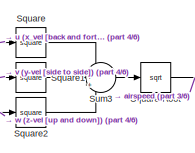
[diagram: root canvas - part 1/6, top right region]
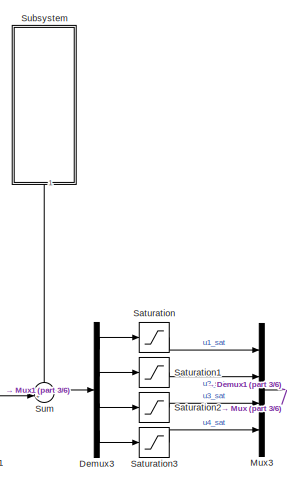
[diagram: root canvas - part 2/6, top left region]
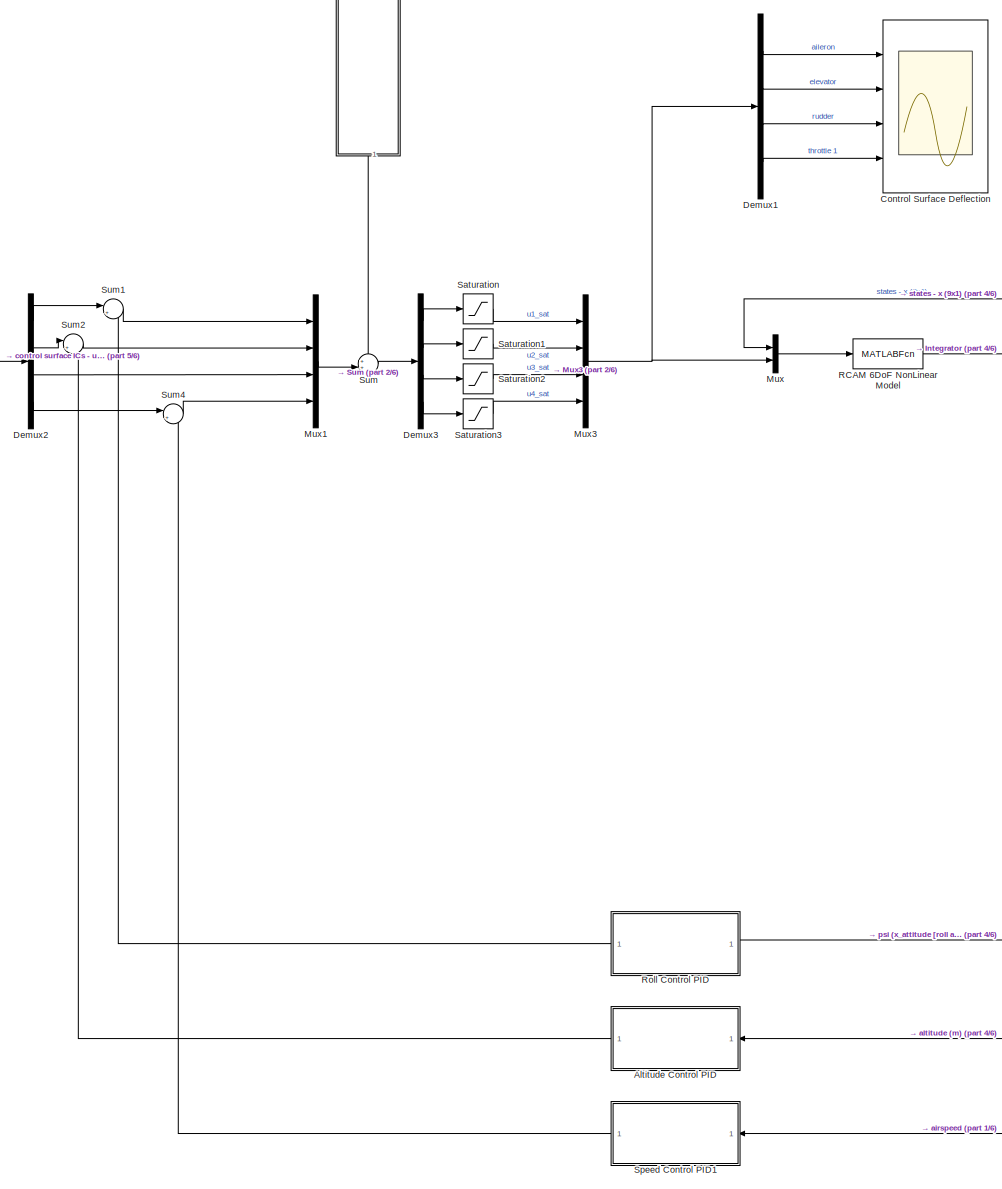
[diagram: root canvas - part 3/6, left side, full height]
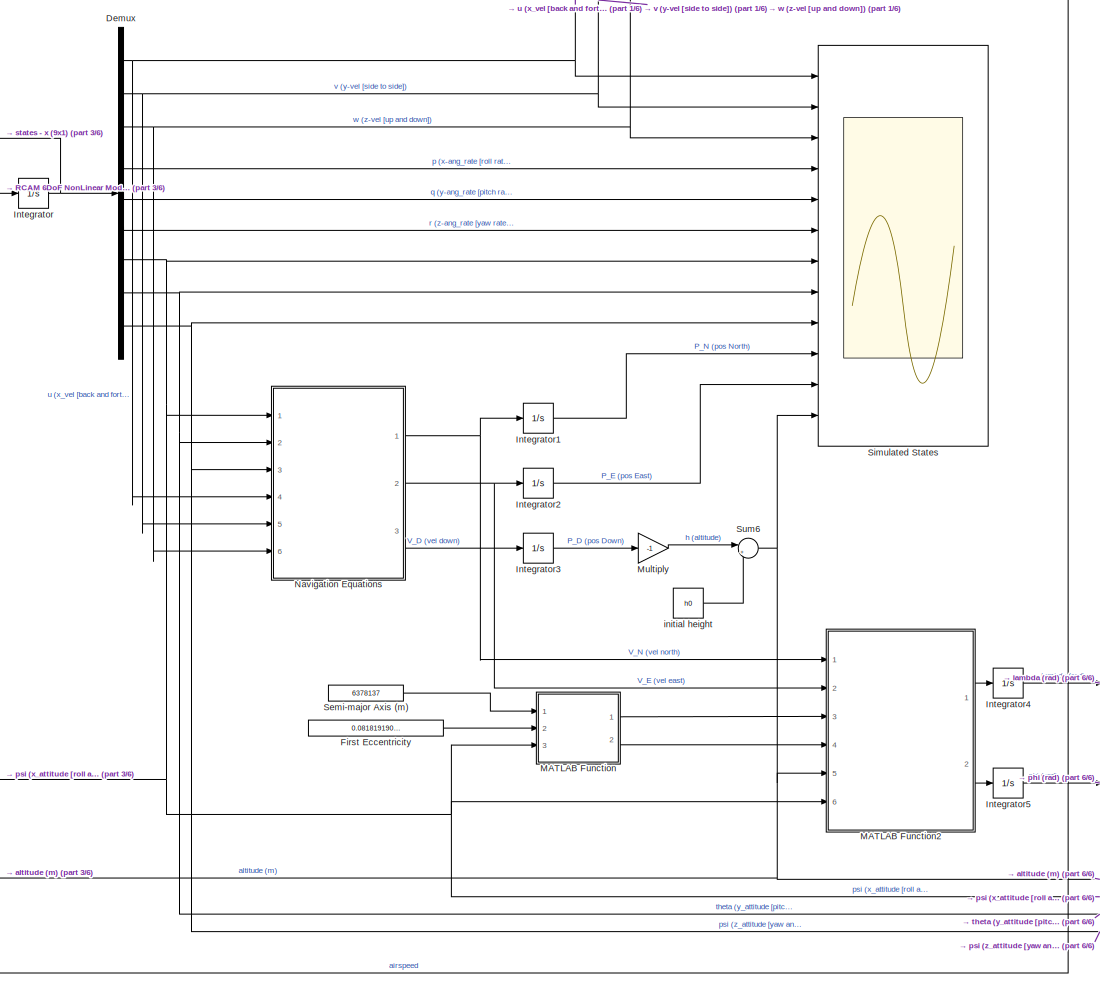
[diagram: root canvas - part 4/6, center side, full height]
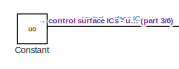
[diagram: root canvas - part 5/6, middle left region]
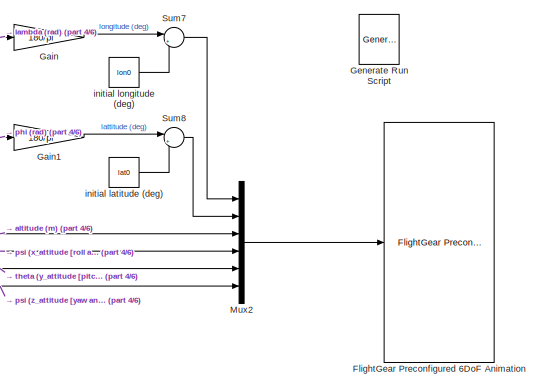
[diagram: root canvas - part 6/6, bottom right region]
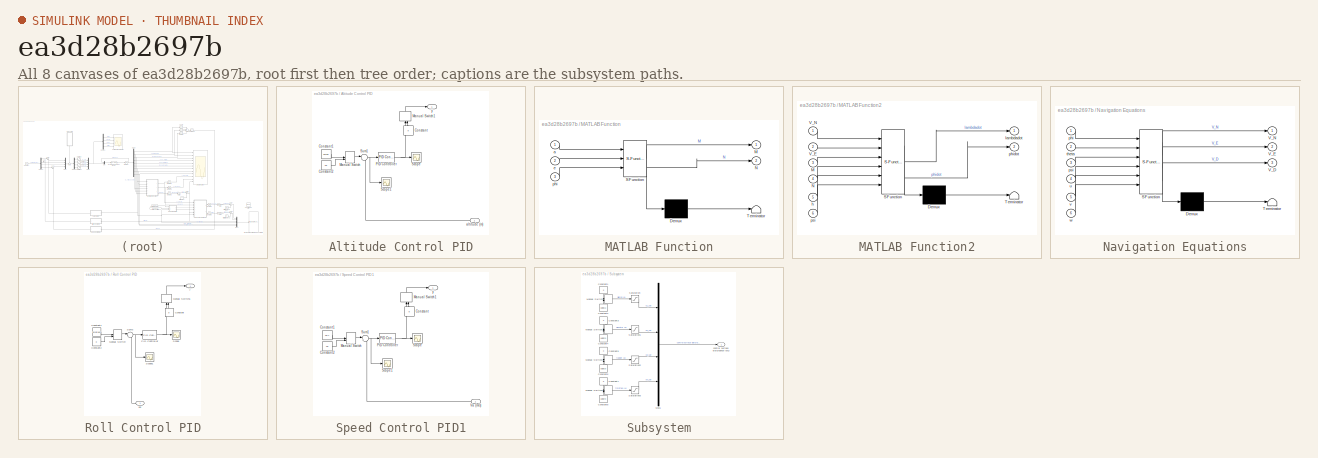
[diagram: thumbnail index - all 8 canvases of the model, root first then tree order]
MODEL slx_ea3d28b2697b
KIND model
CONFIG AbsTol = auto
CONFIG EnableMultiTasking = off
CONFIG FixedStep = 0.0001
CONFIG MaxStep = auto
CONFIG MinStep = auto
CONFIG RelTol = 1e-3
CONFIG SampleTimeConstraint = Unconstrained
CONFIG SolverName = VariableStepAuto
CONFIG StartTime = 0.0
CONFIG StopTime = 120
BLOCK [SubSystem] Altitude Control PID
  NameLocation = top
  Ports = [1, 1]
  RequestExecContextInheritance = off
BLOCK [Constant] Altitude Control PID/Constant
  NameLocation = right
  Value = 0
BLOCK [Constant] Altitude Control PID/Constant1
  Value = h0+30
BLOCK [Constant] Altitude Control PID/Constant2
  Value = h0
BLOCK [ManualSwitch] Altitude Control PID/Manual Switch
  CurrentSetting = 0
BLOCK [ManualSwitch] Altitude Control PID/Manual Switch1
  NameLocation = right
BLOCK [Reference] Altitude Control PID/PID Controller  REF=slpidlib/PID Controller
  Ports = [1, 1]
  SourceBlock = slpidlib/PID Controller
  SourceProductBaseCode = SL
  SourceType = PID 1dof
BLOCK [Scope] Altitude Control PID/Scope
  Floating = off
  NumInputPorts = 1
  Ports = [1]
  ScopeSpecificationString = Simulink.scopes.TimeScopeBlockCfg('CurrentConfiguration', extmgr.ConfigurationSet(extmgr.Configuration('Core','General UI',true),extmgr.Configuration('Core','Source UI',true),extmgr.Configuration('Sources','WiredSimulink',true,'DataLoggingVariableName','ScopeData1'),extmgr.Configuration('Visuals','Time Domain',true,'SerializedDisplays',{struct('MinYLimReal','-0.51269','MaxYLimReal','0.25089','YLab...<+1373ch>
BLOCK [Scope] Altitude Control PID/Scope1
  Floating = off
  NumInputPorts = 1
  Ports = [1]
  ScopeSpecificationString = Simulink.scopes.TimeScopeBlockCfg('CurrentConfiguration', extmgr.ConfigurationSet(extmgr.Configuration('Core','General UI',true),extmgr.Configuration('Core','Source UI',true),extmgr.Configuration('Sources','WiredSimulink',true,'DataLoggingVariableName','ScopeData2'),extmgr.Configuration('Visuals','Time Domain',true,'SerializedDisplays',{struct('MinYLimReal','-334.47065','MaxYLimReal','141.49547','...<+1377ch>
BLOCK [Sum] Altitude Control PID/Sum1
  Inputs = |-+
  Ports = [2, 1]
BLOCK [Inport] Altitude Control PID/altitude (m)
BLOCK [Outport] Altitude Control PID/y
BLOCK [Constant] Constant
  Value = uo
BLOCK [Scope] Control Surface Deflection
  Floating = off
  NumInputPorts = 4
  Ports = [4]
  ScopeSpecificationString = Simulink.scopes.TimeScopeBlockCfg('CurrentConfiguration', extmgr.ConfigurationSet(extmgr.Configuration('Core','General UI',true),extmgr.Configuration('Core','Source UI',true),extmgr.Configuration('Sources','WiredSimulink',true),extmgr.Configuration('Visuals','Time Domain',true,'SerializedDisplays',{struct('MinYLimReal','-1.00000','MaxYLimReal','1.00000','YLabelReal','','MinYLimMag','0.00000','MaxY...<+4797ch>
BLOCK [Demux] Demux
  Outputs = 9
  Ports = [1, 9]
BLOCK [Demux] Demux1
  Ports = [1, 4]
BLOCK [Demux] Demux2
  Ports = [1, 4]
BLOCK [Demux] Demux3
  Ports = [1, 4]
BLOCK [Constant] First Eccentricity
  Value = 0.081819190842622
BLOCK [Reference] FlightGear Preconfigured 6DoF Animation  REF=aerolibfltsims/FlightGear
Preconfigured
6DoF Animation
  Commented = on
  Ports = [1]
  SourceBlock = aerolibfltsims/FlightGear\nPreconfigured\n6DoF Animation
  SourceProductBaseCode = AE
  SourceType = FlightGearQuick6DoFAnimation
BLOCK [Gain] Gain
  Gain = 180/pi
BLOCK [Gain] Gain1
  Gain = 180/pi
BLOCK [Reference] Generate Run Script  REF=aerolibfltsims/Generate
Run Script
  Commented = on
  Ports = []
  SourceBlock = aerolibfltsims/Generate\nRun Script
  SourceProductBaseCode = AE
  SourceType = Generate FlightGear Run Script
BLOCK [Integrator] Integrator
  InitialCondition = x0
  Ports = [1, 1]
BLOCK [Integrator] Integrator1
  Ports = [1, 1]
BLOCK [Integrator] Integrator2
  Ports = [1, 1]
BLOCK [Integrator] Integrator3
  Ports = [1, 1]
BLOCK [Integrator] Integrator4
  Ports = [1, 1]
BLOCK [Integrator] Integrator5
  LowerSaturationLimit = -pi
  Ports = [1, 1]
  UpperSaturationLimit = pi
BLOCK [SubSystem] MATLAB Function
  ErrorFcn = Stateflow.Translate.translate
  PermitHierarchicalResolution = ExplicitOnly
  Ports = [3, 2]
  RequestExecContextInheritance = off
  SFBlockType = MATLAB Function
  TreatAsAtomicUnit = on
BLOCK [Demux] MATLAB Function/ Demux 
  Outputs = 1
  Ports = [1, 1]
BLOCK [S-Function] MATLAB Function/ SFunction 
  EnableBusSupport = on
  FunctionName = sf_sfun
  PortCounts = [3 3]
  Ports = [3, 3]
  SFcnIsStateOwnerBlock = off
  SFunctionDeploymentMode = off
  Tag = Stateflow S-Function 1
BLOCK [Terminator] MATLAB Function/ Terminator 
BLOCK [Outport] MATLAB Function/M
BLOCK [Outport] MATLAB Function/N
  Port = 2
BLOCK [Inport] MATLAB Function/a
BLOCK [Inport] MATLAB Function/e
  Port = 2
BLOCK [Inport] MATLAB Function/phi
  Port = 3
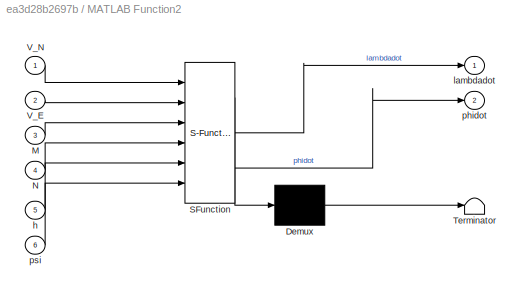
BLOCK [SubSystem] MATLAB Function2
  ErrorFcn = Stateflow.Translate.translate
  PermitHierarchicalResolution = ExplicitOnly
  Ports = [6, 2]
  RequestExecContextInheritance = off
  SFBlockType = MATLAB Function
  TreatAsAtomicUnit = on
BLOCK [Demux] MATLAB Function2/ Demux 
  Outputs = 1
  Ports = [1, 1]
BLOCK [S-Function] MATLAB Function2/ SFunction 
  EnableBusSupport = on
  FunctionName = sf_sfun
  PortCounts = [6 3]
  Ports = [6, 3]
  SFcnIsStateOwnerBlock = off
  SFunctionDeploymentMode = off
  Tag = Stateflow S-Function 4
BLOCK [Terminator] MATLAB Function2/ Terminator 
BLOCK [Inport] MATLAB Function2/M
  Port = 3
BLOCK [Inport] MATLAB Function2/N
  Port = 4
BLOCK [Inport] MATLAB Function2/V_E
  Port = 2
BLOCK [Inport] MATLAB Function2/V_N
BLOCK [Inport] MATLAB Function2/h
  Port = 5
BLOCK [Outport] MATLAB Function2/lambdadot
BLOCK [Outport] MATLAB Function2/phidot
  Port = 2
BLOCK [Inport] MATLAB Function2/psi
  Port = 6
BLOCK [Gain] Multiply
  Gain = -1
BLOCK [Mux] Mux
  DisplayOption = bar
  Inputs = 2
  Ports = [2, 1]
BLOCK [Mux] Mux1
  DisplayOption = bar
  Ports = [4, 1]
BLOCK [Mux] Mux2
  DisplayOption = bar
  Inputs = 6
  Ports = [6, 1]
BLOCK [Mux] Mux3
  DisplayOption = bar
  Ports = [4, 1]
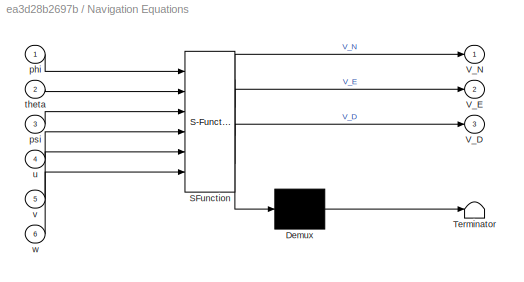
BLOCK [SubSystem] Navigation Equations
  ErrorFcn = Stateflow.Translate.translate
  PermitHierarchicalResolution = ExplicitOnly
  Ports = [6, 3]
  RequestExecContextInheritance = off
  SFBlockType = MATLAB Function
  TreatAsAtomicUnit = on
BLOCK [Demux] Navigation Equations/ Demux 
  Outputs = 1
  Ports = [1, 1]
BLOCK [S-Function] Navigation Equations/ SFunction 
  EnableBusSupport = on
  FunctionName = sf_sfun
  PortCounts = [6 4]
  Ports = [6, 4]
  SFcnIsStateOwnerBlock = off
  SFunctionDeploymentMode = off
  Tag = Stateflow S-Function 2
BLOCK [Terminator] Navigation Equations/ Terminator 
BLOCK [Outport] Navigation Equations/V_D
  Port = 3
BLOCK [Outport] Navigation Equations/V_E
  Port = 2
BLOCK [Outport] Navigation Equations/V_N
BLOCK [Inport] Navigation Equations/phi
BLOCK [Inport] Navigation Equations/psi
  Port = 3
BLOCK [Inport] Navigation Equations/theta
  Port = 2
BLOCK [Inport] Navigation Equations/u
  Port = 4
BLOCK [Inport] Navigation Equations/v
  Port = 5
BLOCK [Inport] Navigation Equations/w
  Port = 6
BLOCK [MATLABFcn] RCAM 6DoF NonLinear Model
  MATLABFcn = RCAM_model(u(1:9), u(10:13))
  Ports = [1, 1]
BLOCK [SubSystem] Roll Control PID
  NameLocation = top
  Ports = [1, 1]
  RequestExecContextInheritance = off
BLOCK [Constant] Roll Control PID/Constant
  NameLocation = right
  Value = 0
BLOCK [Constant] Roll Control PID/Constant1
  Value = 30*pi/180
BLOCK [Constant] Roll Control PID/Constant2
  Value = 0
BLOCK [ManualSwitch] Roll Control PID/Manual Switch
  CurrentSetting = 0
BLOCK [ManualSwitch] Roll Control PID/Manual Switch1
  NameLocation = right
BLOCK [Reference] Roll Control PID/PID Controller  REF=slpidlib/PID Controller
  Ports = [1, 1]
  SourceBlock = slpidlib/PID Controller
  SourceProductBaseCode = SL
  SourceType = PID 1dof
BLOCK [Scope] Roll Control PID/Scope
  Floating = off
  NumInputPorts = 1
  Ports = [1]
  ScopeSpecificationString = Simulink.scopes.TimeScopeBlockCfg('CurrentConfiguration', extmgr.ConfigurationSet(extmgr.Configuration('Core','General UI',true),extmgr.Configuration('Core','Source UI',true),extmgr.Configuration('Sources','WiredSimulink',true,'DataLoggingVariableName','ScopeData1'),extmgr.Configuration('Visuals','Time Domain',true,'SerializedDisplays',{struct('MinYLimReal','-0.51269','MaxYLimReal','0.25089','YLab...<+1373ch>
BLOCK [Scope] Roll Control PID/Scope1
  Floating = off
  NumInputPorts = 1
  Ports = [1]
  ScopeSpecificationString = Simulink.scopes.TimeScopeBlockCfg('CurrentConfiguration', extmgr.ConfigurationSet(extmgr.Configuration('Core','General UI',true),extmgr.Configuration('Core','Source UI',true),extmgr.Configuration('Sources','WiredSimulink',true,'DataLoggingVariableName','ScopeData2'),extmgr.Configuration('Visuals','Time Domain',true,'SerializedDisplays',{struct('MinYLimReal','-1.00000','MaxYLimReal','1.00000','YLab...<+1363ch>
BLOCK [Sum] Roll Control PID/Sum3
  Inputs = |-+
  Ports = [2, 1]
BLOCK [Inport] Roll Control PID/psi
BLOCK [Outport] Roll Control PID/y
BLOCK [Saturate] Saturation
  LowerLimit = u1min
  UpperLimit = u1max
BLOCK [Saturate] Saturation1
  LowerLimit = u2min
  UpperLimit = u2max
BLOCK [Saturate] Saturation2
  LowerLimit = u3min
  UpperLimit = u3max
BLOCK [Saturate] Saturation3
  LowerLimit = u4min
  UpperLimit = u4max
BLOCK [Constant] Semi-major Axis (m)
  Value = 6378137
BLOCK [Scope] Simulated States
  Floating = off
  NumInputPorts = 12
  Ports = [12]
  ScopeSpecificationString = Simulink.scopes.TimeScopeBlockCfg('CurrentConfiguration', extmgr.ConfigurationSet(extmgr.Configuration('Core','General UI',true),extmgr.Configuration('Core','Source UI',true),extmgr.Configuration('Sources','WiredSimulink',true,'DataLoggingVariableName','ScopeData1'),extmgr.Configuration('Visuals','Time Domain',true,'SerializedDisplays',{struct('MinYLimReal','84.99966','MaxYLimReal','85.00057','YLa...<+9310ch>
BLOCK [SubSystem] Speed Control PID1
  NameLocation = top
  Ports = [1, 1]
  RequestExecContextInheritance = off
BLOCK [Constant] Speed Control PID1/Constant
  NameLocation = right
  Value = 0
BLOCK [Constant] Speed Control PID1/Constant1
  Value = va-7
BLOCK [Constant] Speed Control PID1/Constant2
  Value = va
BLOCK [ManualSwitch] Speed Control PID1/Manual Switch
  CurrentSetting = 0
BLOCK [ManualSwitch] Speed Control PID1/Manual Switch1
  CurrentSetting = 0
  NameLocation = right
BLOCK [Reference] Speed Control PID1/PID Controller  REF=slpidlib/PID Controller
  Ports = [1, 1]
  SourceBlock = slpidlib/PID Controller
  SourceProductBaseCode = SL
  SourceType = PID 1dof
BLOCK [Scope] Speed Control PID1/Scope
  Floating = off
  NumInputPorts = 1
  Ports = [1]
  ScopeSpecificationString = Simulink.scopes.TimeScopeBlockCfg('CurrentConfiguration', extmgr.ConfigurationSet(extmgr.Configuration('Core','General UI',true),extmgr.Configuration('Core','Source UI',true),extmgr.Configuration('Sources','WiredSimulink',true,'DataLoggingVariableName','ScopeData1'),extmgr.Configuration('Visuals','Time Domain',true,'SerializedDisplays',{struct('MinYLimReal','-0.07994','MaxYLimReal','0.00888','YLab...<+1403ch>
BLOCK [Scope] Speed Control PID1/Scope1
  Floating = off
  NumInputPorts = 1
  Ports = [1]
  ScopeSpecificationString = Simulink.scopes.TimeScopeBlockCfg('CurrentConfiguration', extmgr.ConfigurationSet(extmgr.Configuration('Core','General UI',true),extmgr.Configuration('Core','Source UI',true),extmgr.Configuration('Sources','WiredSimulink',true,'DataLoggingVariableName','ScopeData2'),extmgr.Configuration('Visuals','Time Domain',true,'SerializedDisplays',{struct('MinYLimReal','-3.63689','MaxYLimReal','2.0976','YLabe...<+1361ch>
BLOCK [Sum] Speed Control PID1/Sum1
  Inputs = |+-
  Ports = [2, 1]
BLOCK [Inport] Speed Control PID1/Va (m//s)
BLOCK [Outport] Speed Control PID1/y
BLOCK [Math] Square
  Operator = square
  Ports = [1, 1]
BLOCK [Sqrt] Square Root
BLOCK [Math] Square1
  Operator = square
  Ports = [1, 1]
BLOCK [Math] Square2
  Operator = square
  Ports = [1, 1]
BLOCK [SubSystem] Subsystem
  NameLocation = left
  Ports = [0, 1]
  RequestExecContextInheritance = off
BLOCK [Constant] Subsystem/Constant1
  NameLocation = left
  Value = 0
BLOCK [Constant] Subsystem/Constant2
  NameLocation = right
  Value = udist(1)
BLOCK [Constant] Subsystem/Constant3
  NameLocation = left
  Value = 0
BLOCK [Constant] Subsystem/Constant4
  NameLocation = right
  Value = udist(2)
BLOCK [Constant] Subsystem/Constant5
  NameLocation = left
  Value = 0
BLOCK [Constant] Subsystem/Constant6
  NameLocation = right
  Value = udist(3)
BLOCK [Constant] Subsystem/Constant7
  NameLocation = left
  Value = 0
BLOCK [Constant] Subsystem/Constant8
  NameLocation = right
  Value = udist(4)
BLOCK [ManualSwitch] Subsystem/Manual Switch
BLOCK [ManualSwitch] Subsystem/Manual Switch1
BLOCK [ManualSwitch] Subsystem/Manual Switch2
BLOCK [ManualSwitch] Subsystem/Manual Switch3
BLOCK [Mux] Subsystem/Mux1
  DisplayOption = bar
  Ports = [4, 1]
BLOCK [Saturate] Subsystem/Saturation
  LowerLimit = u1min
  UpperLimit = u1max
BLOCK [Saturate] Subsystem/Saturation1
  LowerLimit = u2min
  UpperLimit = u2max
BLOCK [Saturate] Subsystem/Saturation2
  LowerLimit = u3min
  UpperLimit = u3max
BLOCK [Saturate] Subsystem/Saturation3
  LowerLimit = u4min
  UpperLimit = u4max
BLOCK [Outport] Subsystem/control surface disturbance (5x1)
BLOCK [Sum] Sum
  Inputs = ++|
  Ports = [2, 1]
BLOCK [Sum] Sum1
  Inputs = |++
  Ports = [2, 1]
BLOCK [Sum] Sum2
  Inputs = |++
  Ports = [2, 1]
BLOCK [Sum] Sum3
  Inputs = +++
  Ports = [3, 1]
BLOCK [Sum] Sum4
  Inputs = |++
  Ports = [2, 1]
BLOCK [Sum] Sum6
  Inputs = |++
  Ports = [2, 1]
BLOCK [Sum] Sum7
  Inputs = |++
  Ports = [2, 1]
BLOCK [Sum] Sum8
  Inputs = |++
  Ports = [2, 1]
BLOCK [Constant] initial height
  Value = h0
BLOCK [Constant] initial latitude (deg)
  Value = lat0
BLOCK [Constant] initial longitude (deg)
  Value = lon0
LINE Altitude Control PID/Constant1:1 -> Altitude Control PID/Manual Switch:1
LINE Altitude Control PID/Constant2:1 -> Altitude Control PID/Manual Switch:2
LINE Altitude Control PID/Constant:1 -> Altitude Control PID/Manual Switch1:2
LINE Altitude Control PID/Manual Switch1:1 -> Altitude Control PID/y:1
LINE Altitude Control PID/Manual Switch:1 -> Altitude Control PID/Sum1:1
NET Altitude Control PID/PID Controller:1 -> Altitude Control PID/Manual Switch1:1, Altitude Control PID/Scope:1
NET Altitude Control PID/Sum1:1 -> Altitude Control PID/PID Controller:1, Altitude Control PID/Scope1:1
LINE Altitude Control PID/altitude (m):1 -> Altitude Control PID/Sum1:2
LINE Altitude Control PID:1 -> Sum2:2
LINE Constant:1 -> Demux2:1
LINE Demux1:1 -> Control Surface Deflection:1
LINE Demux1:2 -> Control Surface Deflection:2
LINE Demux1:3 -> Control Surface Deflection:3
LINE Demux1:4 -> Control Surface Deflection:4
LINE Demux2:1 -> Sum1:1
LINE Demux2:2 -> Sum2:1
LINE Demux2:3 -> Mux1:3
LINE Demux2:4 -> Sum4:1
LINE Demux3:1 -> Saturation:1
LINE Demux3:2 -> Saturation1:1
LINE Demux3:3 -> Saturation2:1
LINE Demux3:4 -> Saturation3:1
NET Demux:1 -> Navigation Equations:4, Simulated States:1, Square:1
NET Demux:2 -> Navigation Equations:5, Simulated States:2, Square1:1
NET Demux:3 -> Navigation Equations:6, Simulated States:3, Square2:1
LINE Demux:4 -> Simulated States:4
LINE Demux:5 -> Simulated States:5
LINE Demux:6 -> Simulated States:6
NET Demux:7 -> MATLAB Function2:6, MATLAB Function:3, Mux2:4, Navigation Equations:1, Roll Control PID:1, Simulated States:7
NET Demux:8 -> Mux2:5, Navigation Equations:2, Simulated States:8
NET Demux:9 -> Mux2:6, Navigation Equations:3, Simulated States:9
LINE First Eccentricity:1 -> MATLAB Function:2
LINE Gain1:1 -> Sum8:1
LINE Gain:1 -> Sum7:1
LINE Integrator1:1 -> Simulated States:10
LINE Integrator2:1 -> Simulated States:11
LINE Integrator3:1 -> Multiply:1
LINE Integrator4:1 -> Gain:1
LINE Integrator5:1 -> Gain1:1
NET Integrator:1 -> Demux:1, Mux:1
LINE MATLAB Function2:1 -> Integrator4:1
LINE MATLAB Function2:2 -> Integrator5:1
LINE MATLAB Function:1 -> MATLAB Function2:3
LINE MATLAB Function:2 -> MATLAB Function2:4
LINE Multiply:1 -> Sum6:1
LINE Mux1:1 -> Sum:2
LINE Mux2:1 -> FlightGear Preconfigured 6DoF Animation:1
NET Mux3:1 -> Demux1:1, Mux:2
LINE Mux:1 -> RCAM 6DoF NonLinear Model:1
NET Navigation Equations:1 -> Integrator1:1, MATLAB Function2:1
NET Navigation Equations:2 -> Integrator2:1, MATLAB Function2:2
LINE Navigation Equations:3 -> Integrator3:1
LINE RCAM 6DoF NonLinear Model:1 -> Integrator:1
LINE Roll Control PID/Constant1:1 -> Roll Control PID/Manual Switch:1
LINE Roll Control PID/Constant2:1 -> Roll Control PID/Manual Switch:2
LINE Roll Control PID/Constant:1 -> Roll Control PID/Manual Switch1:2
LINE Roll Control PID/Manual Switch1:1 -> Roll Control PID/y:1
LINE Roll Control PID/Manual Switch:1 -> Roll Control PID/Sum3:1
NET Roll Control PID/PID Controller:1 -> Roll Control PID/Manual Switch1:1, Roll Control PID/Scope:1
NET Roll Control PID/Sum3:1 -> Roll Control PID/PID Controller:1, Roll Control PID/Scope1:1
LINE Roll Control PID/psi:1 -> Roll Control PID/Sum3:2
LINE Roll Control PID:1 -> Sum1:2
LINE Saturation1:1 -> Mux3:2
LINE Saturation2:1 -> Mux3:3
LINE Saturation3:1 -> Mux3:4
LINE Saturation:1 -> Mux3:1
LINE Semi-major Axis (m):1 -> MATLAB Function:1
LINE Speed Control PID1/Constant1:1 -> Speed Control PID1/Manual Switch:1
LINE Speed Control PID1/Constant2:1 -> Speed Control PID1/Manual Switch:2
LINE Speed Control PID1/Constant:1 -> Speed Control PID1/Manual Switch1:2
LINE Speed Control PID1/Manual Switch1:1 -> Speed Control PID1/y:1
LINE Speed Control PID1/Manual Switch:1 -> Speed Control PID1/Sum1:1
NET Speed Control PID1/PID Controller:1 -> Speed Control PID1/Manual Switch1:1, Speed Control PID1/Scope:1
NET Speed Control PID1/Sum1:1 -> Speed Control PID1/PID Controller:1, Speed Control PID1/Scope1:1
LINE Speed Control PID1/Va (m//s):1 -> Speed Control PID1/Sum1:2
LINE Speed Control PID1:1 -> Sum4:2
LINE Square Root:1 -> Speed Control PID1:1
LINE Square1:1 -> Sum3:2
LINE Square2:1 -> Sum3:3
LINE Square:1 -> Sum3:1
LINE Subsystem/Constant1:1 -> Subsystem/Manual Switch:1
LINE Subsystem/Constant2:1 -> Subsystem/Manual Switch:2
LINE Subsystem/Constant3:1 -> Subsystem/Manual Switch1:1
LINE Subsystem/Constant4:1 -> Subsystem/Manual Switch1:2
LINE Subsystem/Constant5:1 -> Subsystem/Manual Switch2:1
LINE Subsystem/Constant6:1 -> Subsystem/Manual Switch2:2
LINE Subsystem/Constant7:1 -> Subsystem/Manual Switch3:1
LINE Subsystem/Constant8:1 -> Subsystem/Manual Switch3:2
LINE Subsystem/Manual Switch1:1 -> Subsystem/Saturation1:1
LINE Subsystem/Manual Switch2:1 -> Subsystem/Saturation2:1
LINE Subsystem/Manual Switch3:1 -> Subsystem/Saturation3:1
LINE Subsystem/Manual Switch:1 -> Subsystem/Saturation:1
LINE Subsystem/Mux1:1 -> Subsystem/control surface disturbance (5x1):1
LINE Subsystem/Saturation1:1 -> Subsystem/Mux1:2
LINE Subsystem/Saturation2:1 -> Subsystem/Mux1:3
LINE Subsystem/Saturation3:1 -> Subsystem/Mux1:4
LINE Subsystem/Saturation:1 -> Subsystem/Mux1:1
LINE Subsystem:1 -> Sum:1
LINE Sum1:1 -> Mux1:1
LINE Sum2:1 -> Mux1:2
LINE Sum3:1 -> Square Root:1
LINE Sum4:1 -> Mux1:4
NET Sum6:1 -> Altitude Control PID:1, MATLAB Function2:5, Mux2:3, Simulated States:12
LINE Sum7:1 -> Mux2:1
LINE Sum8:1 -> Mux2:2
LINE Sum:1 -> Demux3:1
LINE initial height:1 -> Sum6:2
LINE initial latitude (deg):1 -> Sum8:2
LINE initial longitude (deg):1 -> Sum7:2
note: NET lines group one-source signal fan-out (src -> all destinations, sorted); 1:1 wires keep LINE
CHART MATLAB Function states=1 transitions=1
  STATE_LABEL 'eML_blk_kernel()'
  STATE_LABEL 'SCRIPT:\nfunction [M, N] = calculate_mn (a, e, phi)\n\nM = a*(1-e^2)/(1-(e^2)*sin(phi)^2)^1.5;\n\nN = a/(1-(e^2)*sin(phi)^2)^0.5;\n\nend\n'
CHART Navigation Equations states=1 transitions=1
  STATE_LABEL 'eML_blk_kernel()'
  STATE_LABEL "SCRIPT:\nfunction [V_N, V_E, V_D] = navigation_equation(phi, theta, psi, u, v, w)\n\nx7 = phi;\nx8 = theta;\nx9 = psi;\nx1 = u;\nx2 = v;\nx3 = w;\n\nV_b = [x1; x2; x3];\n\n%navigation equations\nC1v = [cos(x9) sin(x9) 0; -sin(x9) cos(x9) 0; 0 0 1];\n\nC21 = [cos(x8) 0 -sin(x8); 0 1 0; sin(x8) 0 cos(x8)];\n\nCb2 = [1 0 0; 0 cos(x7) sin(x7); 0 -sin(x7) cos(x7)];\n\nCvb = Cb2*C21*C1v;\nCvb = Cvb';\n\nvel_vector = Cvb*V_b;...<+69ch>"
CHART MATLAB Function2 states=1 transitions=1
  STATE_LABEL 'eML_blk_kernel()'
  STATE_LABEL 'SCRIPT:\nfunction [lambdadot, phidot] = calculate_phi_lambdadot(V_N, V_E, M, N, h, psi)\n\nlambdadot = V_E/(N+h)*cos(psi);\nphidot = V_N/(M+h);\n\n\nend'
CHART  states=0 transitions=0
CHART  states=0 transitions=0
CHART  states=0 transitions=0
